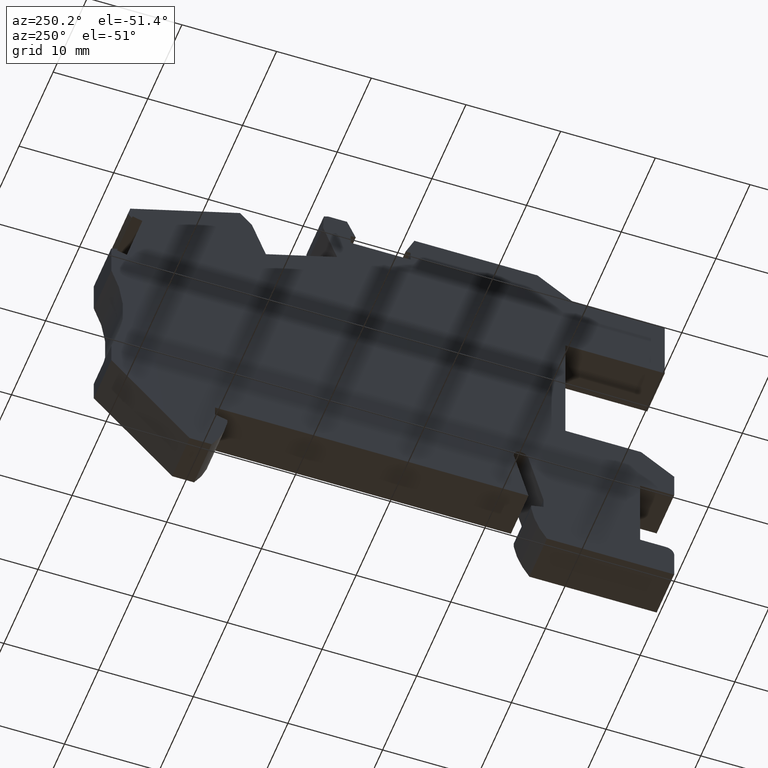
[diagram: clean part render]
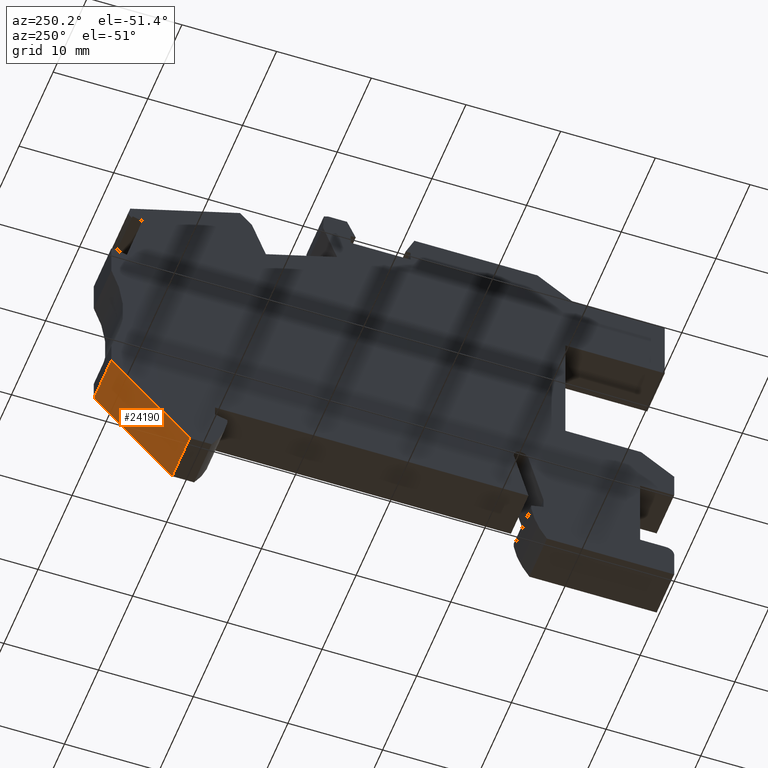
[diagram: same view with one face highlighted and labeled with its STEP entity id]
A machine part, auxiliary view. The second image highlights one B-rep face of the part: STEP entity #24190.
In plain terms, the highlighted planar face has unit normal (-0, 0.7327, -0.6806).
Its self-contained STEP definition (entity closure, byte-faithful):
#2430=CARTESIAN_POINT('',(63.5347758791042,10.5659563601578,0.));
#2440=DIRECTION('',(0.,0.,-1.));
#2450=VECTOR('',#2440,1.);
#2460=LINE('',#2430,#2450);
#2470=CARTESIAN_POINT('',(63.5347758791042,10.5659563601578,
-1.4432899320127E-14));
#2480=VERTEX_POINT('',#2470);
#2490=CARTESIAN_POINT('',(63.5347758791042,10.5659563601578,
-5.14999999999779));
#2500=VERTEX_POINT('',#2490);
#2510=EDGE_CURVE('',#2480,#2500,#2460,.T.);
#16720=CARTESIAN_POINT('',(55.8897803142244,0.,-1.4432899320127E-14));
#16730=DIRECTION('',(-0.586197188888724,-0.810168411960722,0.));
#16740=VECTOR('',#16730,1.);
#16750=LINE('',#16720,#16740);
#16760=CARTESIAN_POINT('',(56.4045487981079,0.711448592760992,
-1.4432899320127E-14));
#16770=VERTEX_POINT('',#16760);
#16780=EDGE_CURVE('',#2480,#16770,#16750,.T.);
#21740=CARTESIAN_POINT('',(56.4045487981079,0.711448592760992,
-5.14999999999789));
#21750=VERTEX_POINT('',#21740);
#21780=CARTESIAN_POINT('',(55.8897803142244,0.,-5.1499999999979));
#21790=DIRECTION('',(-0.586197188888724,-0.810168411960722,
-8.18789480661053E-15));
#21800=VECTOR('',#21790,1.);
#21810=LINE('',#21780,#21800);
#21820=EDGE_CURVE('',#2500,#21750,#21810,.T.);
#24030=CARTESIAN_POINT('',(56.9156882198794,1.4178815499237,
-1.4210854715202E-14));
#24040=DIRECTION('',(0.810168411960722,-0.586197188888724,0.));
#24050=DIRECTION('',(-0.586197188888724,-0.810168411960722,0.));
#24060=AXIS2_PLACEMENT_3D('',#24030,#24040,#24050);
#24070=PLANE('',#24060);
#24080=ORIENTED_EDGE('',*,*,#21820,.F.);
#24090=CARTESIAN_POINT('',(56.4045487981079,0.711448592760992,0.));
#24100=DIRECTION('',(0.,0.,1.));
#24110=VECTOR('',#24100,1.);
#24120=LINE('',#24090,#24110);
#24130=EDGE_CURVE('',#21750,#16770,#24120,.T.);
#24140=ORIENTED_EDGE('',*,*,#24130,.F.);
#24150=ORIENTED_EDGE('',*,*,#16780,.T.);
#24160=ORIENTED_EDGE('',*,*,#2510,.F.);
#24170=EDGE_LOOP('',(#24160,#24150,#24140,#24080));
#24180=FACE_OUTER_BOUND('',#24170,.T.);
#24190=ADVANCED_FACE('',(#24180),#24070,.T.);